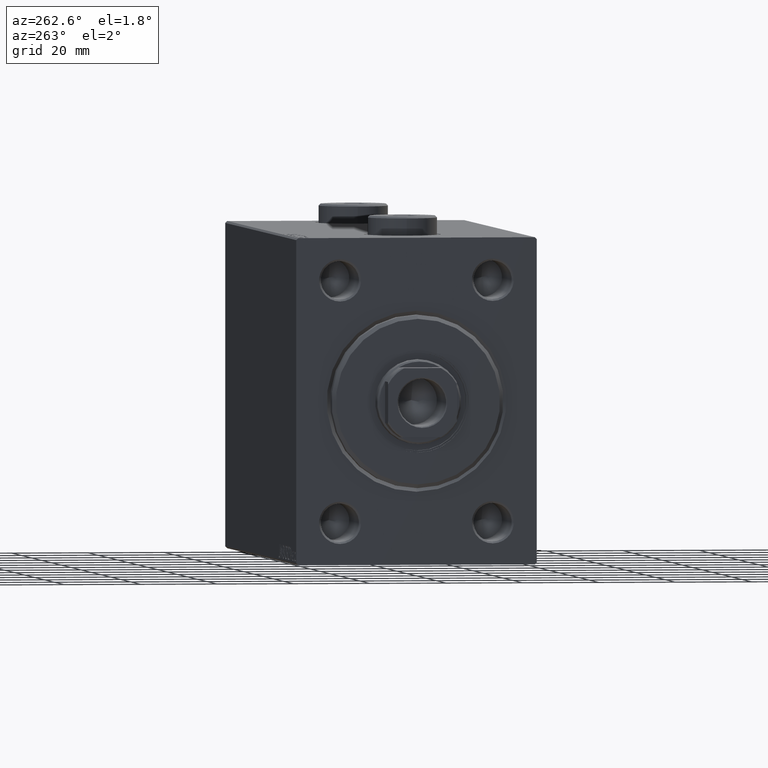
[diagram: clean part render]
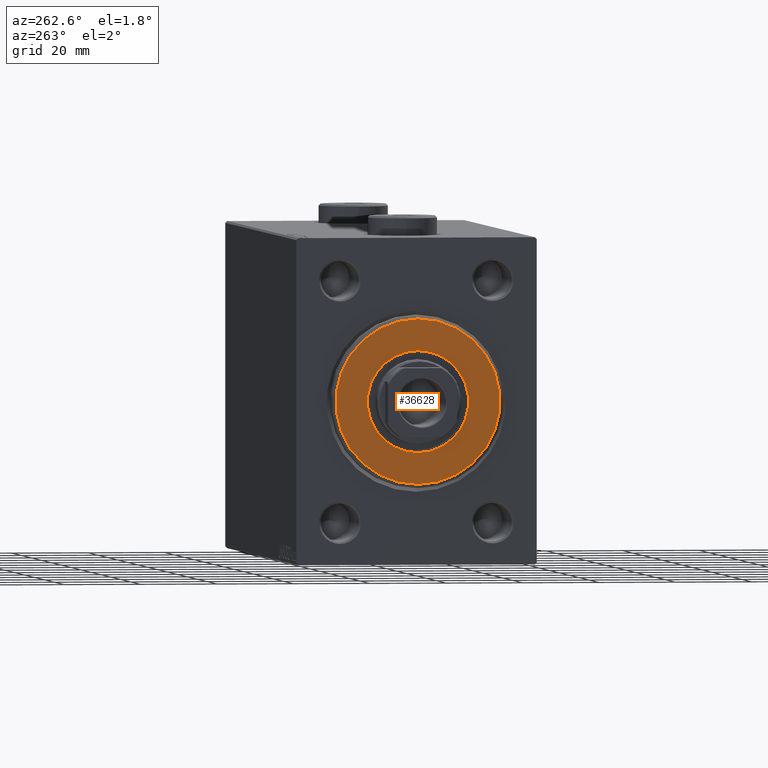
[diagram: same view with one face highlighted and labeled with its STEP entity id]
A machine part, auxiliary view. The second image highlights one B-rep face of the part: STEP entity #36628.
In plain terms, the highlighted planar face has unit normal (-1, 0, 0).
Its self-contained STEP definition (entity closure, byte-faithful):
#28 = CIRCLE ( 'NONE', #44192, 13.25000000000000178 ) ;
#2026 = CARTESIAN_POINT ( 'NONE',  ( 3.000000000000000000, 0.000000000000000000, 21.50000000000000355 ) ) ;
#2162 = AXIS2_PLACEMENT_3D ( 'NONE', #17278, #35026, #23746 ) ;
#3121 = CIRCLE ( 'NONE', #40670, 21.50000000000000355 ) ;
#3405 = VERTEX_POINT ( 'NONE', #2026 ) ;
#4037 = CARTESIAN_POINT ( 'NONE',  ( 3.000000000000000000, 0.000000000000000000, 0.000000000000000000 ) ) ;
#4318 = CARTESIAN_POINT ( 'NONE',  ( 3.000000000000000000, 0.000000000000000000, -13.25000000000000178 ) ) ;
#4841 = AXIS2_PLACEMENT_3D ( 'NONE', #37502, #16756, #13060 ) ;
#7091 = CARTESIAN_POINT ( 'NONE',  ( 3.000000000000000000, 0.000000000000000000, 0.000000000000000000 ) ) ;
#8727 = FACE_OUTER_BOUND ( 'NONE', #29217, .T. ) ;
#11688 = VERTEX_POINT ( 'NONE', #4318 ) ;
#11736 = PLANE ( 'NONE',  #38988 ) ;
#11899 = EDGE_CURVE ( 'NONE', #11688, #38993, #28, .T. ) ;
#13032 = FACE_BOUND ( 'NONE', #37224, .T. ) ;
#13060 = DIRECTION ( 'NONE',  ( 0.000000000000000000, 0.000000000000000000, -1.000000000000000000 ) ) ;
#15587 = ORIENTED_EDGE ( 'NONE', *, *, #11899, .F. ) ;
#16125 = VERTEX_POINT ( 'NONE', #43395 ) ;
#16756 = DIRECTION ( 'NONE',  ( 1.000000000000000000, 0.000000000000000000, 0.000000000000000000 ) ) ;
#17183 = DIRECTION ( 'NONE',  ( 1.000000000000000000, 0.000000000000000000, 0.000000000000000000 ) ) ;
#17278 = CARTESIAN_POINT ( 'NONE',  ( 3.000000000000000000, 0.000000000000000000, 0.000000000000000000 ) ) ;
#17359 = ORIENTED_EDGE ( 'NONE', *, *, #34301, .T. ) ;
#18049 = EDGE_CURVE ( 'NONE', #3405, #16125, #3121, .T. ) ;
#21154 = DIRECTION ( 'NONE',  ( 0.000000000000000000, 0.000000000000000000, -1.000000000000000000 ) ) ;
#21614 = ORIENTED_EDGE ( 'NONE', *, *, #29714, .F. ) ;
#23234 = CIRCLE ( 'NONE', #4841, 13.25000000000000178 ) ;
#23746 = DIRECTION ( 'NONE',  ( 0.000000000000000000, 0.000000000000000000, -1.000000000000000000 ) ) ;
#26028 = DIRECTION ( 'NONE',  ( 0.000000000000000000, 0.000000000000000000, -1.000000000000000000 ) ) ;
#27774 = DIRECTION ( 'NONE',  ( 0.000000000000000000, 0.000000000000000000, -1.000000000000000000 ) ) ;
#28873 = CARTESIAN_POINT ( 'NONE',  ( 3.000000000000000000, 1.622657008870243277E-15, 13.25000000000000178 ) ) ;
#29217 = EDGE_LOOP ( 'NONE', ( #36896, #17359 ) ) ;
#29714 = EDGE_CURVE ( 'NONE', #38993, #11688, #23234, .T. ) ;
#31076 = DIRECTION ( 'NONE',  ( 1.000000000000000000, -0.000000000000000000, 0.000000000000000000 ) ) ;
#34301 = EDGE_CURVE ( 'NONE', #16125, #3405, #44819, .T. ) ;
#35026 = DIRECTION ( 'NONE',  ( 1.000000000000000000, -0.000000000000000000, 0.000000000000000000 ) ) ;
#36628 = ADVANCED_FACE ( 'NONE', ( #8727, #13032 ), #11736, .T. ) ;
#36896 = ORIENTED_EDGE ( 'NONE', *, *, #18049, .T. ) ;
#37224 = EDGE_LOOP ( 'NONE', ( #15587, #21614 ) ) ;
#37502 = CARTESIAN_POINT ( 'NONE',  ( 3.000000000000000000, 0.000000000000000000, 0.000000000000000000 ) ) ;
#38988 = AXIS2_PLACEMENT_3D ( 'NONE', #43545, #43096, #26028 ) ;
#38993 = VERTEX_POINT ( 'NONE', #28873 ) ;
#40670 = AXIS2_PLACEMENT_3D ( 'NONE', #7091, #31076, #21154 ) ;
#43096 = DIRECTION ( 'NONE',  ( 1.000000000000000000, -0.000000000000000000, 0.000000000000000000 ) ) ;
#43395 = CARTESIAN_POINT ( 'NONE',  ( 3.000000000000000000, 2.694222958124177598E-15, -21.50000000000000355 ) ) ;
#43545 = CARTESIAN_POINT ( 'NONE',  ( 3.000000000000000000, 0.000000000000000000, 0.000000000000000000 ) ) ;
#44192 = AXIS2_PLACEMENT_3D ( 'NONE', #4037, #17183, #27774 ) ;
#44819 = CIRCLE ( 'NONE', #2162, 21.50000000000000355 ) ;